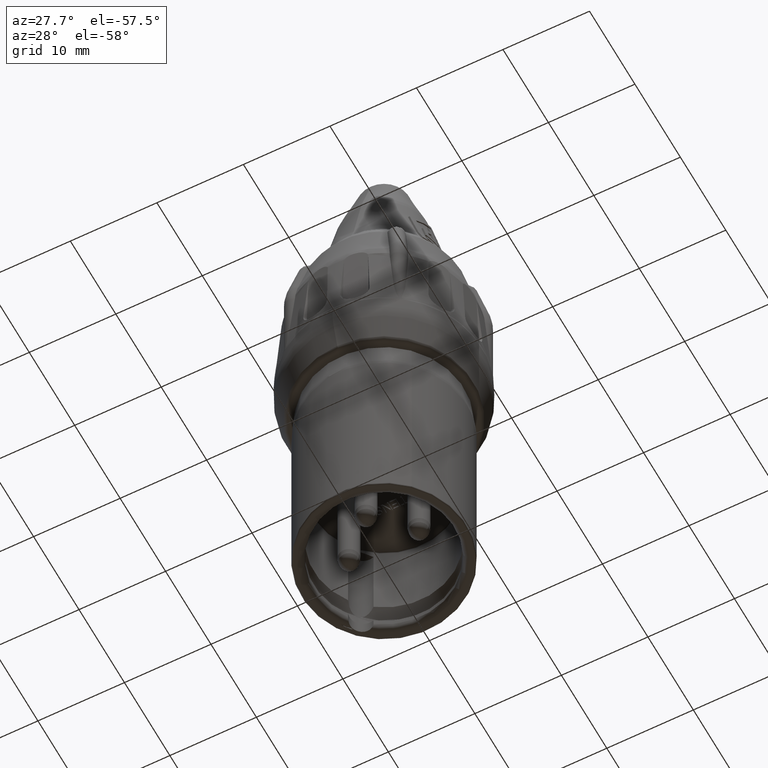
[diagram: clean part render]
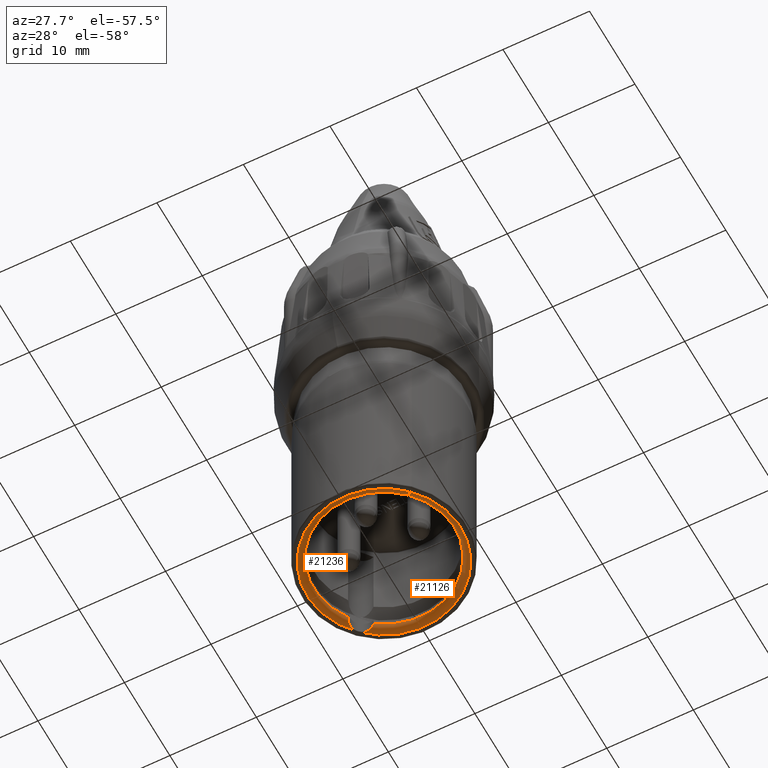
[diagram: same view with one multi-face feature highlighted, each face labeled with its STEP entity id]
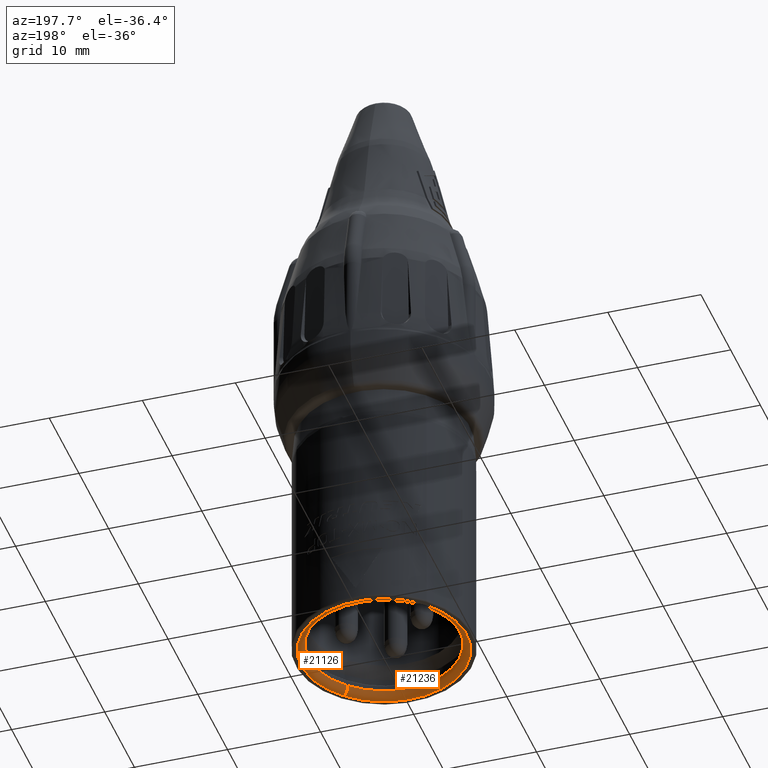
[diagram: same view with one multi-face feature highlighted, each face labeled with its STEP entity id]
A machine part, auxiliary view. The highlighted faces form ONE feature: a constant-radius fillet chain: 2 tangent blend faces with common blend radius 0.8 mm. The faces share edges in the B-rep.
A second angle (auxiliary view) of the same feature is appended — it is thin or edge-on in the first view.
Their STEP definitions:
[1] entity #21126 (Torus):
#3873=CARTESIAN_POINT('',(0.E0,0.E0,-2.9E1));
#3874=DIRECTION('',(0.E0,0.E0,1.E0));
#3875=DIRECTION('',(7.071067811865E-1,-7.071067811865E-1,0.E0));
#3876=AXIS2_PLACEMENT_3D('',#3873,#3874,#3875);
#3878=CARTESIAN_POINT('',(-6.257895013501E0,6.257895013501E0,
-2.899843597113E1));
#3879=CARTESIAN_POINT('',(-6.180866669889E0,6.334923357113E0,
-2.899843597113E1));
#3880=CARTESIAN_POINT('',(-6.013975849105E0,6.468871317790E0,
-2.899761319657E1));
#3881=CARTESIAN_POINT('',(-5.731803391053E0,6.609428705422E0,
-2.898758527403E1));
#3882=CARTESIAN_POINT('',(-5.461710274318E0,6.681278873985E0,
-2.895662604914E1));
#3883=CARTESIAN_POINT('',(-5.221886703692E0,6.702390473194E0,
-2.889611512878E1));
#3884=CARTESIAN_POINT('',(-5.023515739718E0,6.690575916339E0,
-2.880328872706E1));
#3885=CARTESIAN_POINT('',(-4.871867231783E0,6.663478534086E0,
-2.868204870136E1));
#3886=CARTESIAN_POINT('',(-4.764500214477E0,6.634362441005E0,
-2.853730395352E1));
#3887=CARTESIAN_POINT('',(-4.699928865482E0,6.612606201336E0,
-2.837324484980E1));
#3888=CARTESIAN_POINT('',(-4.685528860278E0,6.607255050284E0,
-2.825900467841E1));
#3889=CARTESIAN_POINT('',(-4.685528860278E0,6.607255050284E0,-2.82E1));
#3900=CARTESIAN_POINT('',(0.E0,0.E0,-2.82E1));
#3901=DIRECTION('',(0.E0,0.E0,1.E0));
#3902=DIRECTION('',(7.071067811865E-1,-7.071067811865E-1,0.E0));
#3903=AXIS2_PLACEMENT_3D('',#3900,#3901,#3902);
#4010=CARTESIAN_POINT('',(-6.293250352560E0,6.293250352560E0,-2.82E1));
#4011=DIRECTION('',(-7.071067811865E-1,-7.071067811865E-1,0.E0));
#4012=DIRECTION('',(0.E0,0.E0,-1.E0));
#4013=AXIS2_PLACEMENT_3D('',#4010,#4011,#4012);
#4020=CARTESIAN_POINT('',(6.293250352560E0,-6.293250352560E0,-2.82E1));
#4021=DIRECTION('',(7.071067811865E-1,7.071067811865E-1,0.E0));
#4022=DIRECTION('',(0.E0,0.E0,-1.E0));
#4023=AXIS2_PLACEMENT_3D('',#4020,#4021,#4022);
#11088=CARTESIAN_POINT('',(6.293250352560E0,-6.293250352560E0,-2.9E1));
#11089=CARTESIAN_POINT('',(5.727564927611E0,-5.727564927611E0,-2.82E1));
#11090=VERTEX_POINT('',#11088);
#11091=VERTEX_POINT('',#11089);
#11100=CARTESIAN_POINT('',(-6.293250352560E0,6.293250352560E0,-2.9E1));
#11101=VERTEX_POINT('',#11100);
#11106=CARTESIAN_POINT('',(-4.685528860278E0,6.607255050284E0,-2.82E1));
#11107=VERTEX_POINT('',#11106);
#11116=VERTEX_POINT('',#3878);
#21110=CARTESIAN_POINT('',(0.E0,0.E0,-2.82E1));
#21111=DIRECTION('',(0.E0,0.E0,1.E0));
#21112=DIRECTION('',(-7.071067811865E-1,7.071067811865E-1,0.E0));
#21113=AXIS2_PLACEMENT_3D('',#21110,#21111,#21112);
#21114=TOROIDAL_SURFACE('',#21113,8.9E0,8.E-1);
#21116=ORIENTED_EDGE('',*,*,#21115,.F.);
#21118=ORIENTED_EDGE('',*,*,#21117,.F.);
#21120=ORIENTED_EDGE('',*,*,#21119,.T.);
#21122=ORIENTED_EDGE('',*,*,#21121,.T.);
#21123=ORIENTED_EDGE('',*,*,#21076,.T.);
#21124=EDGE_LOOP('',(#21116,#21118,#21120,#21122,#21123));
#21125=FACE_OUTER_BOUND('',#21124,.F.);
#3877=CIRCLE('',#3876,8.9E0);
#3890=B_SPLINE_CURVE_WITH_KNOTS('',3,(#3878,#3879,#3880,#3881,#3882,#3883,#3884,
#3885,#3886,#3887,#3888,#3889),.UNSPECIFIED.,.F.,.F.,(4,1,1,1,1,1,1,1,1,4),
(0.E0,1.111111111111E-1,2.222222222222E-1,3.333333333333E-1,4.444444444444E-1,
5.555555555556E-1,6.666666666667E-1,7.777777777778E-1,8.888888888889E-1,1.E0),
.UNSPECIFIED.);
#3904=CIRCLE('',#3903,8.1E0);
#4014=CIRCLE('',#4013,8.E-1);
#4024=CIRCLE('',#4023,8.E-1);
#21076=EDGE_CURVE('',#11116,#11107,#3890,.T.);
#21115=EDGE_CURVE('',#11091,#11107,#3904,.T.);
#21117=EDGE_CURVE('',#11090,#11091,#4024,.T.);
#21119=EDGE_CURVE('',#11090,#11101,#3877,.T.);
#21121=EDGE_CURVE('',#11101,#11116,#4014,.T.);
#21126=ADVANCED_FACE('',(#21125),#21114,.T.);
[2] entity #21236 (Torus):
#3878=CARTESIAN_POINT('',(-6.257895013501E0,6.257895013501E0,
-2.899843597113E1));
#3895=CARTESIAN_POINT('',(0.E0,0.E0,-2.82E1));
#3896=DIRECTION('',(0.E0,0.E0,-1.E0));
#3897=DIRECTION('',(7.071067811865E-1,-7.071067811865E-1,0.E0));
#3898=AXIS2_PLACEMENT_3D('',#3895,#3896,#3897);
#3997=CARTESIAN_POINT('',(-6.607255050284E0,4.685528860278E0,-2.82E1));
#3998=CARTESIAN_POINT('',(-6.607255050284E0,4.685528860278E0,
-2.825900613864E1));
#3999=CARTESIAN_POINT('',(-6.612606466176E0,4.699929577184E0,
-2.837324892023E1));
#4000=CARTESIAN_POINT('',(-6.634363578171E0,4.764503693609E0,
-2.853731087451E1));
#4001=CARTESIAN_POINT('',(-6.663480464874E0,4.871875396505E0,
-2.868205781366E1));
#4002=CARTESIAN_POINT('',(-6.690578818311E0,5.023533826122E0,
-2.880330106203E1));
#4003=CARTESIAN_POINT('',(-6.702389386939E0,5.221918076814E0,
-2.889612514520E1));
#4004=CARTESIAN_POINT('',(-6.681277083062E0,5.461720301792E0,
-2.895662739343E1));
#4005=CARTESIAN_POINT('',(-6.609419490619E0,5.731827522257E0,
-2.898758702787E1));
#4006=CARTESIAN_POINT('',(-6.468868464434E0,6.013977639275E0,
-2.899761288108E1));
#4007=CARTESIAN_POINT('',(-6.334922704081E0,6.180867322921E0,
-2.899843597113E1));
#4008=CARTESIAN_POINT('',(-6.257895013501E0,6.257895013501E0,
-2.899843597113E1));
#4010=CARTESIAN_POINT('',(-6.293250352560E0,6.293250352560E0,-2.82E1));
#4011=DIRECTION('',(-7.071067811865E-1,-7.071067811865E-1,0.E0));
#4012=DIRECTION('',(0.E0,0.E0,-1.E0));
#4013=AXIS2_PLACEMENT_3D('',#4010,#4011,#4012);
#4015=CARTESIAN_POINT('',(0.E0,0.E0,-2.9E1));
#4016=DIRECTION('',(0.E0,0.E0,-1.E0));
#4017=DIRECTION('',(7.071067811865E-1,-7.071067811865E-1,0.E0));
#4018=AXIS2_PLACEMENT_3D('',#4015,#4016,#4017);
#4020=CARTESIAN_POINT('',(6.293250352560E0,-6.293250352560E0,-2.82E1));
#4021=DIRECTION('',(7.071067811865E-1,7.071067811865E-1,0.E0));
#4022=DIRECTION('',(0.E0,0.E0,-1.E0));
#4023=AXIS2_PLACEMENT_3D('',#4020,#4021,#4022);
#11088=CARTESIAN_POINT('',(6.293250352560E0,-6.293250352560E0,-2.9E1));
#11089=CARTESIAN_POINT('',(5.727564927611E0,-5.727564927611E0,-2.82E1));
#11090=VERTEX_POINT('',#11088);
#11091=VERTEX_POINT('',#11089);
#11100=CARTESIAN_POINT('',(-6.293250352560E0,6.293250352560E0,-2.9E1));
#11101=VERTEX_POINT('',#11100);
#11110=CARTESIAN_POINT('',(-6.607255050284E0,4.685528860278E0,-2.82E1));
#11111=VERTEX_POINT('',#11110);
#11116=VERTEX_POINT('',#3878);
#21223=CARTESIAN_POINT('',(0.E0,0.E0,-2.82E1));
#21224=DIRECTION('',(0.E0,0.E0,1.E0));
#21225=DIRECTION('',(-7.071067811865E-1,7.071067811865E-1,0.E0));
#21226=AXIS2_PLACEMENT_3D('',#21223,#21224,#21225);
#21227=TOROIDAL_SURFACE('',#21226,8.9E0,8.E-1);
#21228=ORIENTED_EDGE('',*,*,#21135,.T.);
#21229=ORIENTED_EDGE('',*,*,#21078,.T.);
#21230=ORIENTED_EDGE('',*,*,#21121,.F.);
#21232=ORIENTED_EDGE('',*,*,#21231,.F.);
#21233=ORIENTED_EDGE('',*,*,#21117,.T.);
#21234=EDGE_LOOP('',(#21228,#21229,#21230,#21232,#21233));
#21235=FACE_OUTER_BOUND('',#21234,.F.);
#3899=CIRCLE('',#3898,8.1E0);
#4009=B_SPLINE_CURVE_WITH_KNOTS('',3,(#3997,#3998,#3999,#4000,#4001,#4002,#4003,
#4004,#4005,#4006,#4007,#4008),.UNSPECIFIED.,.F.,.F.,(4,1,1,1,1,1,1,1,1,4),
(0.E0,1.111111111111E-1,2.222222222222E-1,3.333333333333E-1,4.444444444444E-1,
5.555555555556E-1,6.666666666667E-1,7.777777777778E-1,8.888888888889E-1,1.E0),
.UNSPECIFIED.);
#4014=CIRCLE('',#4013,8.E-1);
#4019=CIRCLE('',#4018,8.9E0);
#4024=CIRCLE('',#4023,8.E-1);
#21078=EDGE_CURVE('',#11111,#11116,#4009,.T.);
#21117=EDGE_CURVE('',#11090,#11091,#4024,.T.);
#21121=EDGE_CURVE('',#11101,#11116,#4014,.T.);
#21135=EDGE_CURVE('',#11091,#11111,#3899,.T.);
#21231=EDGE_CURVE('',#11090,#11101,#4019,.T.);
#21236=ADVANCED_FACE('',(#21235),#21227,.T.);